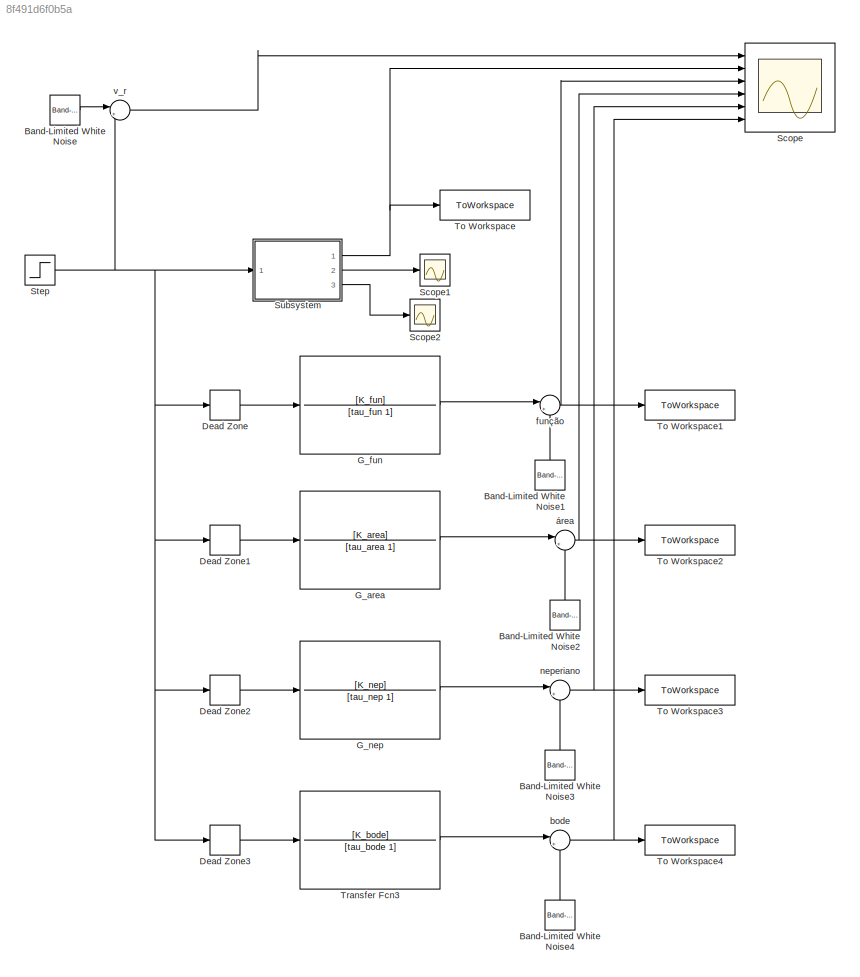
MODEL slx_8f491d6f0b5a
KIND model
CONFIG AbsTol = auto
CONFIG EnableMultiTasking = off
CONFIG FixedStep = auto
CONFIG MaxStep = auto
CONFIG MinStep = auto
CONFIG RelTol = 1e-3
CONFIG SampleTimeConstraint = Unconstrained
CONFIG SolverName = VariableStepAuto
CONFIG StartTime = 0.0
CONFIG StopTime = 10
BLOCK [Reference] Band-Limited White Noise  REF=simulink/Sources/Band-Limited
White Noise
  Ports = [0, 1]
  SourceBlock = simulink/Sources/Band-Limited\nWhite Noise
  SourceProductBaseCode = SL
  SourceType = Band-Limited White Noise.
BLOCK [Reference] Band-Limited White Noise1  REF=simulink/Sources/Band-Limited
White Noise
  NameLocation = right
  Ports = [0, 1]
  SourceBlock = simulink/Sources/Band-Limited\nWhite Noise
  SourceProductBaseCode = SL
  SourceType = Band-Limited White Noise.
BLOCK [Reference] Band-Limited White Noise2  REF=simulink/Sources/Band-Limited
White Noise
  NameLocation = right
  Ports = [0, 1]
  SourceBlock = simulink/Sources/Band-Limited\nWhite Noise
  SourceProductBaseCode = SL
  SourceType = Band-Limited White Noise.
BLOCK [Reference] Band-Limited White Noise3  REF=simulink/Sources/Band-Limited
White Noise
  NameLocation = right
  Ports = [0, 1]
  SourceBlock = simulink/Sources/Band-Limited\nWhite Noise
  SourceProductBaseCode = SL
  SourceType = Band-Limited White Noise.
BLOCK [Reference] Band-Limited White Noise4  REF=simulink/Sources/Band-Limited
White Noise
  NameLocation = right
  Ports = [0, 1]
  SourceBlock = simulink/Sources/Band-Limited\nWhite Noise
  SourceProductBaseCode = SL
  SourceType = Band-Limited White Noise.
BLOCK [DeadZone] Dead Zone
  LowerValue = -3.2
  UpperValue = 3.2
BLOCK [DeadZone] Dead Zone1
  LowerValue = -3.2
  UpperValue = 3.2
BLOCK [DeadZone] Dead Zone2
  LowerValue = -3.2
  UpperValue = 3.2
BLOCK [DeadZone] Dead Zone3
  LowerValue = -3.2
  UpperValue = 3.2
BLOCK [TransferFcn] G_area
  Denominator = [tau_area 1]
  Numerator = [K_area]
BLOCK [TransferFcn] G_fun
  Denominator = [tau_fun 1]
  Numerator = [K_fun]
BLOCK [TransferFcn] G_nep
  Denominator = [tau_nep 1]
  Numerator = [K_nep]
BLOCK [Scope] Scope
  Floating = off
  NumInputPorts = 6
  Ports = [6]
  ScopeSpecificationString = Simulink.scopes.TimeScopeBlockCfg('CurrentConfiguration', extmgr.ConfigurationSet(extmgr.Configuration('Core','General UI',true),extmgr.Configuration('Core','Source UI',true),extmgr.Configuration('Sources','WiredSimulink',true),extmgr.Configuration('Visuals','Time Domain',true,'SerializedDisplays',{struct('MinYLimReal','-0.50272','MaxYLimReal','10.23542','YLabelReal','','MinYLimMag','0.00000','Max...<+1446ch>
BLOCK [Scope] Scope1
  Floating = off
  NumInputPorts = 1
  Ports = [1]
  ScopeSpecificationString = Simulink.scopes.TimeScopeBlockCfg('CurrentConfiguration', extmgr.ConfigurationSet(extmgr.Configuration('Core','General UI',true),extmgr.Configuration('Core','Source UI',true),extmgr.Configuration('Sources','WiredSimulink',true,'DataLoggingVariableName','ScopeData1'),extmgr.Configuration('Visuals','Time Domain',true,'SerializedDisplays',{struct('MinYLimReal','-20.13717','MaxYLimReal','181.2511','YL...<+1453ch>
BLOCK [Scope] Scope2
  Floating = off
  NumInputPorts = 1
  Ports = [1]
  ScopeSpecificationString = Simulink.scopes.TimeScopeBlockCfg('CurrentConfiguration', extmgr.ConfigurationSet(extmgr.Configuration('Core','General UI',true),extmgr.Configuration('Core','Source UI',true),extmgr.Configuration('Sources','WiredSimulink',true,'DataLoggingVariableName','ScopeData2'),extmgr.Configuration('Visuals','Time Domain',true,'SerializedDisplays',{struct('MinYLimReal','-0.09019','MaxYLimReal','0.75092','YLab...<+1447ch>
BLOCK [Step] Step
  After = 10
  SampleTime = 0
  Time = 0
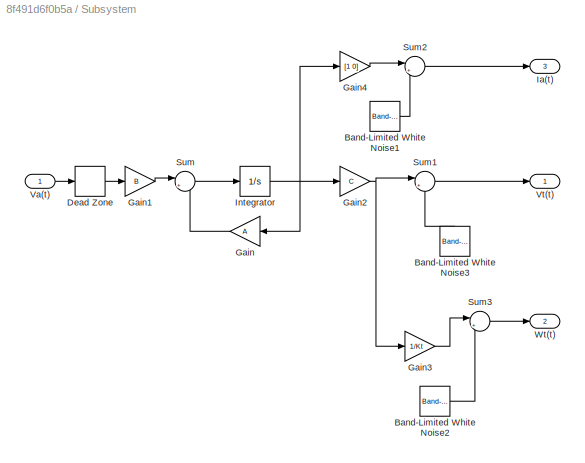
BLOCK [SubSystem] Subsystem
  Ports = [1, 3]
  RequestExecContextInheritance = off
BLOCK [Reference] Subsystem/Band-Limited White Noise1  REF=simulink/Sources/Band-Limited
White Noise
  Ports = [0, 1]
  SourceBlock = simulink/Sources/Band-Limited\nWhite Noise
  SourceProductBaseCode = SL
  SourceType = Band-Limited White Noise.
BLOCK [Reference] Subsystem/Band-Limited White Noise2  REF=simulink/Sources/Band-Limited
White Noise
  Ports = [0, 1]
  SourceBlock = simulink/Sources/Band-Limited\nWhite Noise
  SourceProductBaseCode = SL
  SourceType = Band-Limited White Noise.
BLOCK [Reference] Subsystem/Band-Limited White Noise3  REF=simulink/Sources/Band-Limited
White Noise
  NameLocation = right
  Ports = [0, 1]
  SourceBlock = simulink/Sources/Band-Limited\nWhite Noise
  SourceProductBaseCode = SL
  SourceType = Band-Limited White Noise.
BLOCK [DeadZone] Subsystem/Dead Zone
  LowerValue = -3.2
  UpperValue = 3.2
BLOCK [Gain] Subsystem/Gain
  Gain = A
  Multiplication = Matrix(K*u)
  NameLocation = top
BLOCK [Gain] Subsystem/Gain1
  Gain = B
  Multiplication = Matrix(K*u)
BLOCK [Gain] Subsystem/Gain2
  Gain = C
  Multiplication = Matrix(K*u)
BLOCK [Gain] Subsystem/Gain3
  Gain = 1/Kt
BLOCK [Gain] Subsystem/Gain4
  Gain = [1 0]
  Multiplication = Matrix(K*u)
BLOCK [Outport] Subsystem/Ia(t)
  Port = 3
BLOCK [Integrator] Subsystem/Integrator
  Ports = [1, 1]
BLOCK [Sum] Subsystem/Sum
  Inputs = |++
  Ports = [2, 1]
BLOCK [Sum] Subsystem/Sum1
  Inputs = |++
  Ports = [2, 1]
BLOCK [Sum] Subsystem/Sum2
  Inputs = |++
  Ports = [2, 1]
BLOCK [Sum] Subsystem/Sum3
  Inputs = |++
  Ports = [2, 1]
BLOCK [Inport] Subsystem/Va(t)
BLOCK [Outport] Subsystem/Vt(t)
BLOCK [Outport] Subsystem/Wt(t)
  Port = 2
BLOCK [ToWorkspace] To Workspace
  FixptAsFi = on
  MaxDataPoints = inf
  Ports = [1]
  SampleTime = -1
  SaveFormat = Structure With Time
  VariableName = Vt1
BLOCK [ToWorkspace] To Workspace1
  FixptAsFi = on
  MaxDataPoints = inf
  Ports = [1]
  SampleTime = -1
  SaveFormat = Structure With Time
  VariableName = Vt_fun
BLOCK [ToWorkspace] To Workspace2
  FixptAsFi = on
  MaxDataPoints = inf
  Ports = [1]
  SampleTime = -1
  SaveFormat = Structure With Time
  VariableName = Vt_area
BLOCK [ToWorkspace] To Workspace3
  FixptAsFi = on
  MaxDataPoints = inf
  Ports = [1]
  SampleTime = -1
  SaveFormat = Structure With Time
  VariableName = Vt_nep
BLOCK [ToWorkspace] To Workspace4
  FixptAsFi = on
  MaxDataPoints = inf
  Ports = [1]
  SampleTime = -1
  SaveFormat = Structure With Time
  VariableName = Vt_bode
BLOCK [TransferFcn] Transfer Fcn3
  Denominator = [tau_bode 1]
  Numerator = [K_bode]
BLOCK [Sum] bode
  Inputs = |++
  Ports = [2, 1]
BLOCK [Sum] função
  Inputs = |++
  Ports = [2, 1]
BLOCK [Sum] neperiano
  Inputs = |++
  Ports = [2, 1]
BLOCK [Sum] v_r
  Inputs = |++
  Ports = [2, 1]
BLOCK [Sum] área
  Inputs = |++
  Ports = [2, 1]
LINE Band-Limited White Noise1:1 -> função:2
LINE Band-Limited White Noise2:1 -> área:2
LINE Band-Limited White Noise3:1 -> neperiano:2
LINE Band-Limited White Noise4:1 -> bode:2
LINE Band-Limited White Noise:1 -> v_r:1
LINE Dead Zone1:1 -> G_area:1
LINE Dead Zone2:1 -> G_nep:1
LINE Dead Zone3:1 -> Transfer Fcn3:1
LINE Dead Zone:1 -> G_fun:1
LINE G_area:1 -> área:1
LINE G_fun:1 -> função:1
LINE G_nep:1 -> neperiano:1
NET Step:1 -> Dead Zone1:1, Dead Zone2:1, Dead Zone3:1, Dead Zone:1, Subsystem:1, v_r:2
LINE Subsystem/Band-Limited White Noise1:1 -> Subsystem/Sum2:2
LINE Subsystem/Band-Limited White Noise2:1 -> Subsystem/Sum3:2
LINE Subsystem/Band-Limited White Noise3:1 -> Subsystem/Sum1:2
LINE Subsystem/Dead Zone:1 -> Subsystem/Gain1:1
LINE Subsystem/Gain1:1 -> Subsystem/Sum:1
NET Subsystem/Gain2:1 -> Subsystem/Gain3:1, Subsystem/Sum1:1
LINE Subsystem/Gain3:1 -> Subsystem/Sum3:1
LINE Subsystem/Gain4:1 -> Subsystem/Sum2:1
LINE Subsystem/Gain:1 -> Subsystem/Sum:2
NET Subsystem/Integrator:1 -> Subsystem/Gain2:1, Subsystem/Gain4:1, Subsystem/Gain:1
LINE Subsystem/Sum1:1 -> Subsystem/Vt(t):1
LINE Subsystem/Sum2:1 -> Subsystem/Ia(t):1
LINE Subsystem/Sum3:1 -> Subsystem/Wt(t):1
LINE Subsystem/Sum:1 -> Subsystem/Integrator:1
LINE Subsystem/Va(t):1 -> Subsystem/Dead Zone:1
NET Subsystem:1 -> Scope:2, To Workspace:1
LINE Subsystem:2 -> Scope1:1
LINE Subsystem:3 -> Scope2:1
LINE Transfer Fcn3:1 -> bode:1
NET bode:1 -> Scope:6, To Workspace4:1
NET função:1 -> Scope:3, To Workspace1:1
NET neperiano:1 -> Scope:5, To Workspace3:1
LINE v_r:1 -> Scope:1
NET área:1 -> Scope:4, To Workspace2:1
note: NET lines group one-source signal fan-out (src -> all destinations, sorted); 1:1 wires keep LINE
